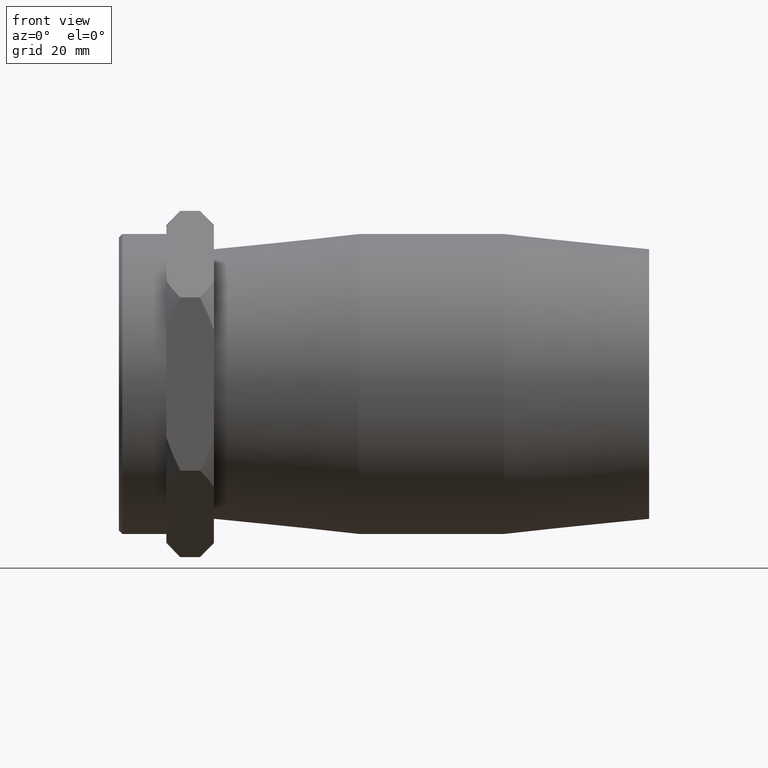
[diagram: clean part render]
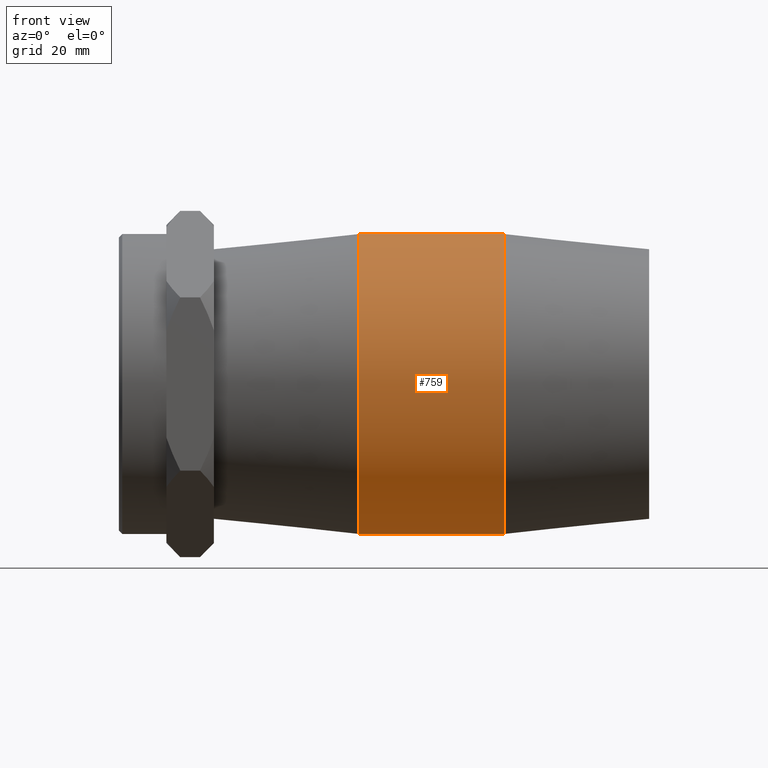
[diagram: same view with one face highlighted and labeled with its STEP entity id]
A machine part, front view. The second image highlights one B-rep face of the part: STEP entity #759.
In plain terms, the highlighted cylindrical surface (bore or boss wall) has radius 41 mm, axis along (1, 0, 0).
Its self-contained STEP definition (entity closure, byte-faithful):
#97=CYLINDRICAL_SURFACE('',#855,41.);
#144=FACE_BOUND('',#276,.T.);
#200=FACE_OUTER_BOUND('',#275,.T.);
#275=EDGE_LOOP('',(#676));
#276=EDGE_LOOP('',(#677));
#331=CIRCLE('',#856,41.);
#332=CIRCLE('',#857,41.);
#402=VERTEX_POINT('',#1410);
#403=VERTEX_POINT('',#1412);
#497=EDGE_CURVE('',#402,#402,#331,.T.);
#498=EDGE_CURVE('',#403,#403,#332,.T.);
#676=ORIENTED_EDGE('',*,*,#497,.F.);
#677=ORIENTED_EDGE('',*,*,#498,.T.);
#759=ADVANCED_FACE('',(#200,#144),#97,.T.);
#855=AXIS2_PLACEMENT_3D('',#1409,#1067,#1068);
#856=AXIS2_PLACEMENT_3D('',#1411,#1069,#1070);
#857=AXIS2_PLACEMENT_3D('',#1413,#1071,#1072);
#1067=DIRECTION('center_axis',(1.,0.,0.));
#1068=DIRECTION('ref_axis',(0.,1.,0.));
#1069=DIRECTION('center_axis',(1.,0.,0.));
#1070=DIRECTION('ref_axis',(0.,0.,-1.));
#1071=DIRECTION('center_axis',(1.,0.,0.));
#1072=DIRECTION('ref_axis',(0.,0.,-1.));
#1409=CARTESIAN_POINT('Origin',(0.,0.,0.));
#1410=CARTESIAN_POINT('',(19.8333333333333,41.,0.));
#1411=CARTESIAN_POINT('Origin',(19.8333333333333,0.,0.));
#1412=CARTESIAN_POINT('',(-19.8333333333333,41.,0.));
#1413=CARTESIAN_POINT('Origin',(-19.8333333333333,0.,0.));